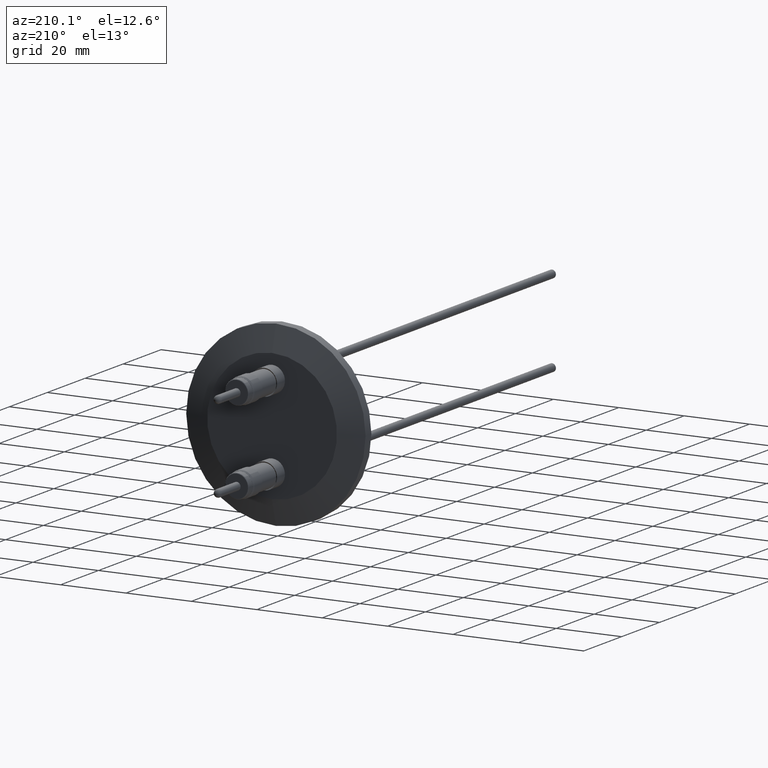
[diagram: clean part render]
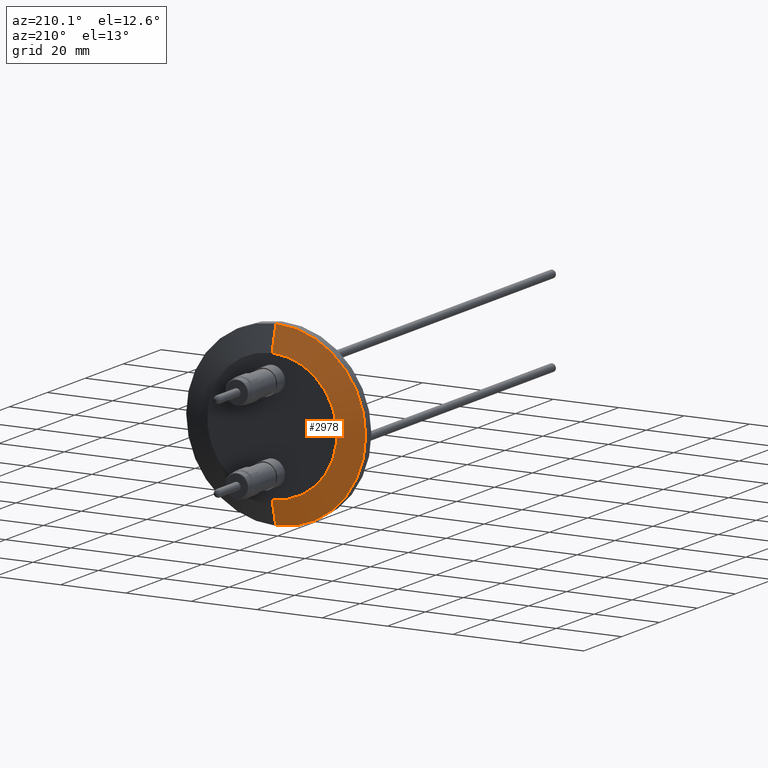
[diagram: same view with one face highlighted and labeled with its STEP entity id]
A machine part, auxiliary view. The second image highlights one B-rep face of the part: STEP entity #2978.
In plain terms, the highlighted conical surface has half-angle 75 deg.
Its self-contained STEP definition (entity closure, byte-faithful):
#1 = CARTESIAN_POINT ( 'NONE',  ( 1.139800780049361700E-016, -0.6727120255272258700, 0.7814359353944911900 ) ) ;
#3 = CARTESIAN_POINT ( 'NONE',  ( 0.0000000000000000000, -0.6727120255272258700, -0.7814359353944911900 ) ) ;
#217 = CARTESIAN_POINT ( 'NONE',  ( 0.0000000000000000000, -0.7527120255272259400, 1.080000000000000500 ) ) ;
#220 = CARTESIAN_POINT ( 'NONE',  ( 1.322618543079142200E-016, -0.7527120255272259400, -1.080000000000000500 ) ) ;
#346 = VECTOR ( 'NONE', #2782, 39.37007874015748100 ) ;
#347 = LINE ( 'NONE', #2667, #346 ) ;
#432 = VECTOR ( 'NONE', #2781, 39.37007874015748100 ) ;
#515 = EDGE_LOOP ( 'NONE', ( #2265, #2048, #2117, #2114 ) ) ;
#593 = VERTEX_POINT ( 'NONE', #3 ) ;
#595 = VERTEX_POINT ( 'NONE', #1 ) ;
#626 = VERTEX_POINT ( 'NONE', #220 ) ;
#629 = VERTEX_POINT ( 'NONE', #217 ) ;
#694 = DIRECTION ( 'NONE',  ( 0.0000000000000000000, 0.0000000000000000000, 1.000000000000000000 ) ) ;
#696 = CARTESIAN_POINT ( 'NONE',  ( 0.0000000000000000000, -0.6727120255272258700, 0.0000000000000000000 ) ) ;
#699 = DIRECTION ( 'NONE',  ( -0.0000000000000000000, 1.000000000000000000, -0.0000000000000000000 ) ) ;
#1247 = AXIS2_PLACEMENT_3D ( 'NONE', #1630, #1634, #1643 ) ;
#1389 = CIRCLE ( 'NONE', #2609, 1.080000000000000500 ) ;
#1405 = CIRCLE ( 'NONE', #2601, 0.7814359353944911900 ) ;
#1462 = CONICAL_SURFACE ( 'NONE', #1247, 0.7814359353944911900, 1.308996938995746100 ) ;
#1468 = FACE_OUTER_BOUND ( 'NONE', #515, .T. ) ;
#1630 = CARTESIAN_POINT ( 'NONE',  ( 0.0000000000000000000, -0.6727120255272258700, 0.0000000000000000000 ) ) ;
#1634 = DIRECTION ( 'NONE',  ( 0.0000000000000000000, -1.000000000000000000, 0.0000000000000000000 ) ) ;
#1643 = DIRECTION ( 'NONE',  ( 0.0000000000000000000, 0.0000000000000000000, -1.000000000000000000 ) ) ;
#1760 = EDGE_CURVE ( 'NONE', #595, #629, #347, .T. ) ;
#1763 = EDGE_CURVE ( 'NONE', #593, #626, #3092, .T. ) ;
#2048 = ORIENTED_EDGE ( 'NONE', *, *, #3051, .F. ) ;
#2114 = ORIENTED_EDGE ( 'NONE', *, *, #3058, .T. ) ;
#2117 = ORIENTED_EDGE ( 'NONE', *, *, #1763, .T. ) ;
#2265 = ORIENTED_EDGE ( 'NONE', *, *, #1760, .F. ) ;
#2601 = AXIS2_PLACEMENT_3D ( 'NONE', #696, #699, #694 ) ;
#2609 = AXIS2_PLACEMENT_3D ( 'NONE', #3294, #3295, #3296 ) ;
#2667 = CARTESIAN_POINT ( 'NONE',  ( 9.569830170195815100E-017, -0.6727120255272258700, 0.7814359353944911900 ) ) ;
#2760 = CARTESIAN_POINT ( 'NONE',  ( 0.0000000000000000000, -0.6727120255272258700, -0.7814359353944911900 ) ) ;
#2781 = DIRECTION ( 'NONE',  ( 0.0000000000000000000, -0.2588190451025217900, -0.9659258262890679800 ) ) ;
#2782 = DIRECTION ( 'NONE',  ( 1.182917971378669300E-016, -0.2588190451025217900, 0.9659258262890679800 ) ) ;
#2978 = ADVANCED_FACE ( 'NONE', ( #1468 ), #1462, .T. ) ;
#3051 = EDGE_CURVE ( 'NONE', #593, #595, #1405, .T. ) ;
#3058 = EDGE_CURVE ( 'NONE', #626, #629, #1389, .T. ) ;
#3092 = LINE ( 'NONE', #2760, #432 ) ;
#3294 = CARTESIAN_POINT ( 'NONE',  ( 0.0000000000000000000, -0.7527120255272259400, 0.0000000000000000000 ) ) ;
#3295 = DIRECTION ( 'NONE',  ( -0.0000000000000000000, 1.000000000000000000, -0.0000000000000000000 ) ) ;
#3296 = DIRECTION ( 'NONE',  ( 0.0000000000000000000, 0.0000000000000000000, 1.000000000000000000 ) ) ;